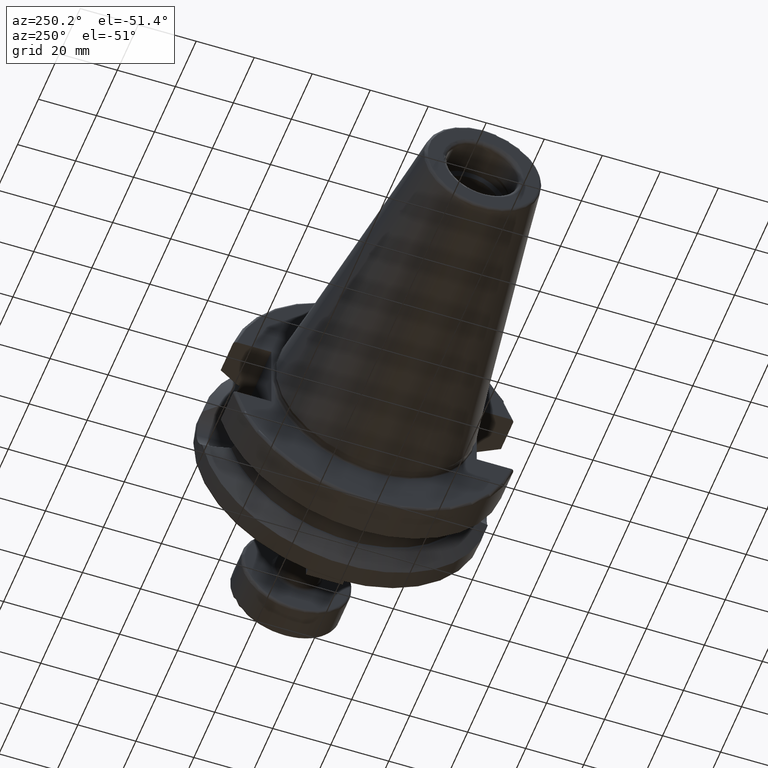
[diagram: clean part render]
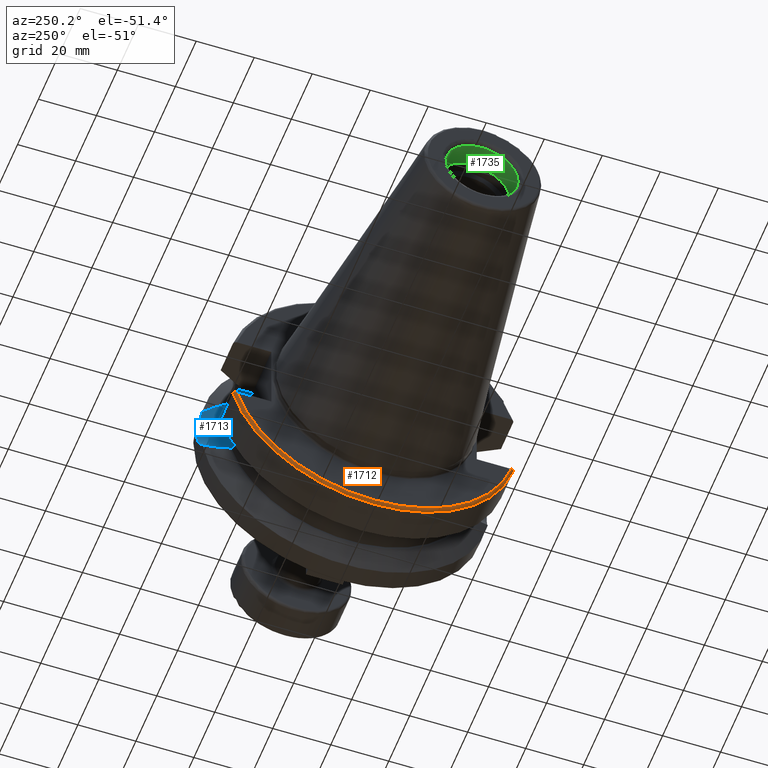
[diagram: same view with three faces highlighted in distinct colors, each labeled with its STEP entity id]
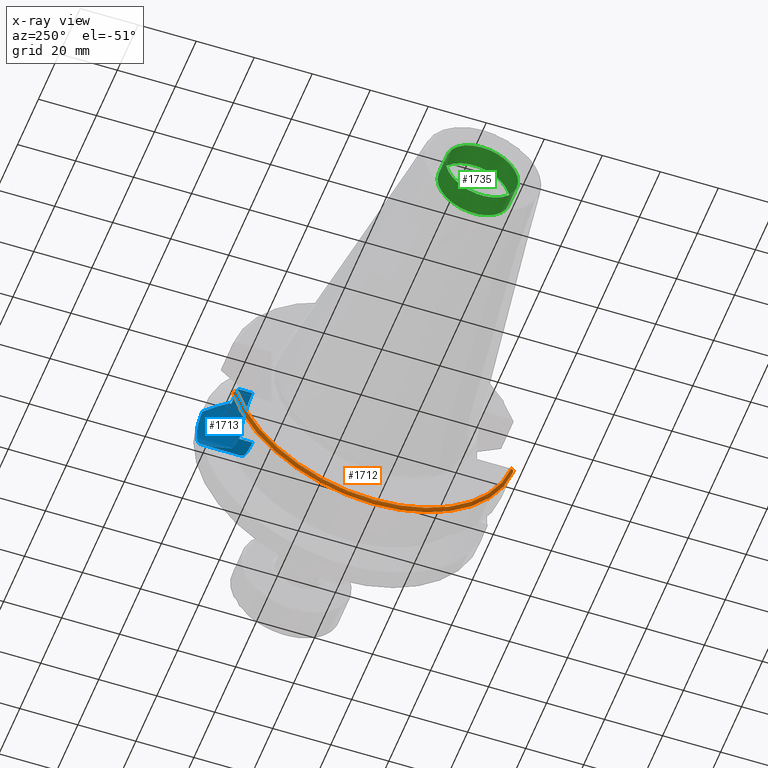
[diagram: x-ray of the same camera — body ghosted, the three highlighted faces saturated]
A machine part, auxiliary view with three faces highlighted in distinct colors.
The next image is the same camera in x-ray (body ghosted, the three faces saturated) — at least one of them is partly hidden behind the body in this view.
Their STEP definitions:

[orange] entity #1712 — the highlighted toroidal blend (fillet) surface has major radius 49 mm and minor (blend) radius 1 mm.
#53=TOROIDAL_SURFACE('',#1954,49.,1.00000000000001);
#82=B_SPLINE_CURVE_WITH_KNOTS('',3,(#2854,#2855,#2856,#2857,#2858,#2859,
#2860,#2861,#2862,#2863),.UNSPECIFIED.,.F.,.F.,(4,2,2,2,4),(0.,0.0366153602488887,
0.0738785471279768,0.111954770343825,0.150744738148559),.UNSPECIFIED.);
#86=B_SPLINE_CURVE_WITH_KNOTS('',3,(#2934,#2935,#2936,#2937,#2938,#2939,
#2940,#2941,#2942,#2943),.UNSPECIFIED.,.F.,.F.,(4,2,2,2,4),(-0.150744738148559,
-0.111954770343824,-0.0738785471279767,-0.0366153602488887,0.),
 .UNSPECIFIED.);
#180=CIRCLE('',#1953,50.);
#181=CIRCLE('',#1955,49.);
#282=FACE_OUTER_BOUND('',#392,.T.);
#392=EDGE_LOOP('',(#1291,#1292,#1293,#1294));
#768=VERTEX_POINT('',#2851);
#769=VERTEX_POINT('',#2853);
#782=VERTEX_POINT('',#2928);
#783=VERTEX_POINT('',#2932);
#950=EDGE_CURVE('',#769,#768,#82,.T.);
#972=EDGE_CURVE('',#769,#782,#180,.T.);
#974=EDGE_CURVE('',#768,#783,#181,.T.);
#975=EDGE_CURVE('',#783,#782,#86,.T.);
#1291=ORIENTED_EDGE('',*,*,#950,.T.);
#1292=ORIENTED_EDGE('',*,*,#974,.T.);
#1293=ORIENTED_EDGE('',*,*,#975,.T.);
#1294=ORIENTED_EDGE('',*,*,#972,.F.);
#1712=ADVANCED_FACE('',(#282),#53,.T.);
#1953=AXIS2_PLACEMENT_3D('',#2929,#2284,#2285);
#1954=AXIS2_PLACEMENT_3D('',#2931,#2287,#2288);
#1955=AXIS2_PLACEMENT_3D('',#2933,#2289,#2290);
#2284=DIRECTION('center_axis',(1.,0.,0.));
#2285=DIRECTION('ref_axis',(0.,0.,-1.));
#2287=DIRECTION('center_axis',(1.,0.,0.));
#2288=DIRECTION('ref_axis',(0.,0.,-1.));
#2289=DIRECTION('center_axis',(1.,0.,0.));
#2290=DIRECTION('ref_axis',(0.,0.,-1.));
#2851=CARTESIAN_POINT('',(3.,-47.2850663529195,-12.85));
#2853=CARTESIAN_POINT('',(4.,-48.320570153921,-12.85));
#2854=CARTESIAN_POINT('Ctrl Pts',(4.,-48.320570153921,-12.85));
#2855=CARTESIAN_POINT('Ctrl Pts',(3.87794879917037,-48.320570153921,-12.85));
#2856=CARTESIAN_POINT('Ctrl Pts',(3.73444179762801,-48.2913008148985,-12.85));
#2857=CARTESIAN_POINT('Ctrl Pts',(3.50759661267378,-48.195456420672,-12.85));
#2858=CARTESIAN_POINT('Ctrl Pts',(3.38466178625349,-48.1111726737502,-12.85));
#2859=CARTESIAN_POINT('Ctrl Pts',(3.20894825591124,-47.9317521656206,-12.85));
#2860=CARTESIAN_POINT('Ctrl Pts',(3.12586105659968,-47.8041069632012,-12.85));
#2861=CARTESIAN_POINT('Ctrl Pts',(3.0295042947282,-47.5666951077039,-12.85));
#2862=CARTESIAN_POINT('Ctrl Pts',(3.,-47.414366245602,-12.85));
#2863=CARTESIAN_POINT('Ctrl Pts',(3.,-47.2850663529195,-12.85));
#2928=CARTESIAN_POINT('',(4.,48.320570153921,-12.85));
#2929=CARTESIAN_POINT('Origin',(4.,0.,0.));
#2931=CARTESIAN_POINT('Origin',(4.,0.,0.));
#2932=CARTESIAN_POINT('',(3.,47.2850663529195,-12.85));
#2933=CARTESIAN_POINT('Origin',(2.99999999999999,0.,0.));
#2934=CARTESIAN_POINT('Ctrl Pts',(3.,47.2850663529195,-12.85));
#2935=CARTESIAN_POINT('Ctrl Pts',(3.,47.414366245602,-12.85));
#2936=CARTESIAN_POINT('Ctrl Pts',(3.0295042947282,47.5666951077039,-12.85));
#2937=CARTESIAN_POINT('Ctrl Pts',(3.12586105659968,47.8041069632012,-12.85));
#2938=CARTESIAN_POINT('Ctrl Pts',(3.20894825591124,47.9317521656206,-12.85));
#2939=CARTESIAN_POINT('Ctrl Pts',(3.38466178625349,48.1111726737502,-12.85));
#2940=CARTESIAN_POINT('Ctrl Pts',(3.50759661267378,48.195456420672,-12.85));
#2941=CARTESIAN_POINT('Ctrl Pts',(3.73444179762801,48.2913008148985,-12.85));
#2942=CARTESIAN_POINT('Ctrl Pts',(3.87794879917037,48.320570153921,-12.85));
#2943=CARTESIAN_POINT('Ctrl Pts',(4.,48.320570153921,-12.85));

[blue] entity #1713 — the highlighted cylindrical surface (partial cylindrical patch) has radius 12.85 mm, axis along (0, 1, 0).
#83=B_SPLINE_CURVE_WITH_KNOTS('',3,(#2881,#2882,#2883,#2884,#2885,#2886,
#2887,#2888,#2889,#2890),.UNSPECIFIED.,.F.,.F.,(4,2,2,2,4),(4.93620473060709,
5.35046932757102,5.83683405515698,6.32319878274293,6.73746337970686),
 .UNSPECIFIED.);
#84=B_SPLINE_CURVE_WITH_KNOTS('',3,(#2896,#2897,#2898,#2899,#2900,#2901),
 .UNSPECIFIED.,.F.,.F.,(4,2,4),(1.70597184072793,2.24802424732131,2.60708937353861),
 .UNSPECIFIED.);
#85=B_SPLINE_CURVE_WITH_KNOTS('',3,(#2911,#2912,#2913,#2914,#2915,#2916),
 .UNSPECIFIED.,.F.,.F.,(4,2,4),(3.89908224496632,4.38654404035674,4.45084983106028),
 .UNSPECIFIED.);
#87=B_SPLINE_CURVE_WITH_KNOTS('',3,(#2952,#2953,#2954,#2955,#2956,#2957),
 .UNSPECIFIED.,.F.,.F.,(4,2,4),(-0.551767586093955,-0.487461795390416,0.),
 .UNSPECIFIED.);
#88=B_SPLINE_CURVE_WITH_KNOTS('',3,(#2960,#2961,#2962,#2963,#2964,#2965),
 .UNSPECIFIED.,.F.,.F.,(4,2,4),(4.84387686434585,5.20294199056316,5.74499439715654),
 .UNSPECIFIED.);
#103=CYLINDRICAL_SURFACE('',#1956,12.85);
#182=CIRCLE('',#1957,12.85);
#283=FACE_OUTER_BOUND('',#393,.T.);
#393=EDGE_LOOP('',(#1295,#1296,#1297,#1298,#1299,#1300,#1301,#1302,#1303,
#1304));
#518=LINE('',#2905,#638);
#522=LINE('',#2946,#642);
#523=LINE('',#2950,#643);
#524=LINE('',#2959,#644);
#638=VECTOR('',#2267,10.);
#642=VECTOR('',#2293,10.);
#643=VECTOR('',#2296,10.);
#644=VECTOR('',#2297,10.);
#774=VERTEX_POINT('',#2878);
#775=VERTEX_POINT('',#2880);
#776=VERTEX_POINT('',#2894);
#777=VERTEX_POINT('',#2903);
#779=VERTEX_POINT('',#2909);
#784=VERTEX_POINT('',#2945);
#785=VERTEX_POINT('',#2947);
#786=VERTEX_POINT('',#2949);
#787=VERTEX_POINT('',#2951);
#788=VERTEX_POINT('',#2958);
#958=EDGE_CURVE('',#774,#775,#83,.T.);
#962=EDGE_CURVE('',#776,#774,#84,.T.);
#964=EDGE_CURVE('',#777,#776,#518,.T.);
#967=EDGE_CURVE('',#779,#777,#85,.T.);
#976=EDGE_CURVE('',#784,#779,#522,.T.);
#977=EDGE_CURVE('',#785,#784,#182,.T.);
#978=EDGE_CURVE('',#785,#786,#523,.T.);
#979=EDGE_CURVE('',#787,#786,#87,.T.);
#980=EDGE_CURVE('',#788,#787,#524,.T.);
#981=EDGE_CURVE('',#775,#788,#88,.T.);
#1295=ORIENTED_EDGE('',*,*,#967,.F.);
#1296=ORIENTED_EDGE('',*,*,#976,.F.);
#1297=ORIENTED_EDGE('',*,*,#977,.F.);
#1298=ORIENTED_EDGE('',*,*,#978,.T.);
#1299=ORIENTED_EDGE('',*,*,#979,.F.);
#1300=ORIENTED_EDGE('',*,*,#980,.F.);
#1301=ORIENTED_EDGE('',*,*,#981,.F.);
#1302=ORIENTED_EDGE('',*,*,#958,.F.);
#1303=ORIENTED_EDGE('',*,*,#962,.F.);
#1304=ORIENTED_EDGE('',*,*,#964,.F.);
#1713=ADVANCED_FACE('',(#283),#103,.F.);
#1956=AXIS2_PLACEMENT_3D('',#2944,#2291,#2292);
#1957=AXIS2_PLACEMENT_3D('',#2948,#2294,#2295);
#2267=DIRECTION('',(0.,1.,0.));
#2291=DIRECTION('center_axis',(0.,1.,0.));
#2292=DIRECTION('ref_axis',(0.,0.,1.));
#2293=DIRECTION('',(0.,1.,0.));
#2294=DIRECTION('center_axis',(0.,1.,0.));
#2295=DIRECTION('ref_axis',(0.,0.,1.));
#2296=DIRECTION('',(0.,1.,0.));
#2297=DIRECTION('',(0.,-1.,0.));
#2878=CARTESIAN_POINT('',(30.732084412946,49.2614843635149,-8.56190155883473));
#2880=CARTESIAN_POINT('',(30.732084412946,49.2614843635149,8.56190155883473));
#2881=CARTESIAN_POINT('Ctrl Pts',(30.732084412946,49.2614843635149,-8.56190155883473));
#2882=CARTESIAN_POINT('Ctrl Pts',(31.6613105934157,49.4422325446756,-7.52195457523598));
#2883=CARTESIAN_POINT('Ctrl Pts',(32.4582062331155,49.6231582095288,-6.27499601477286));
#2884=CARTESIAN_POINT('Ctrl Pts',(33.6745155840303,49.9132657111737,-3.34559903481264));
#2885=CARTESIAN_POINT('Ctrl Pts',(34.,50.,-1.62121575861985));
#2886=CARTESIAN_POINT('Ctrl Pts',(34.,50.,1.62121575861984));
#2887=CARTESIAN_POINT('Ctrl Pts',(33.6745155840303,49.9132657111737,3.34559903481263));
#2888=CARTESIAN_POINT('Ctrl Pts',(32.4582062331155,49.6231582095288,6.27499601477285));
#2889=CARTESIAN_POINT('Ctrl Pts',(31.6613105934157,49.4422325446756,7.52195457523597));
#2890=CARTESIAN_POINT('Ctrl Pts',(30.732084412946,49.2614843635149,8.56190155883473));
#2894=CARTESIAN_POINT('',(26.7,41.388865421545,-11.5896505555603));
#2896=CARTESIAN_POINT('Ctrl Pts',(26.7,41.388865421545,-11.5896505555603));
#2897=CARTESIAN_POINT('Ctrl Pts',(27.5575735603595,43.0541580056802,-11.1789795661998));
#2898=CARTESIAN_POINT('Ctrl Pts',(28.3833872619345,44.664615633924,-10.6667071522788));
#2899=CARTESIAN_POINT('Ctrl Pts',(29.6692681874855,47.1784655131599,-9.64228850610742));
#2900=CARTESIAN_POINT('Ctrl Pts',(30.2082188762695,48.2339624041648,-9.14818764948575));
#2901=CARTESIAN_POINT('Ctrl Pts',(30.732084412946,49.2614843635149,-8.56190155883473));
#2903=CARTESIAN_POINT('',(26.7,40.6813224957105,-11.5896505555603));
#2905=CARTESIAN_POINT('',(26.7,35.4,-11.5896505555603));
#2909=CARTESIAN_POINT('',(21.15,40.3009615269909,-12.85));
#2911=CARTESIAN_POINT('Ctrl Pts',(21.15,40.3009615269909,-12.85));
#2912=CARTESIAN_POINT('Ctrl Pts',(22.7748726513014,40.3009615269909,-12.85));
#2913=CARTESIAN_POINT('Ctrl Pts',(24.5004394739693,40.4095209038274,-12.523156759676));
#2914=CARTESIAN_POINT('Ctrl Pts',(26.2903327171265,40.6269325004893,-11.7792407740914));
#2915=CARTESIAN_POINT('Ctrl Pts',(26.4965759220475,40.6535701129615,-11.6870653677865));
#2916=CARTESIAN_POINT('Ctrl Pts',(26.7,40.6813224957105,-11.5896505555603));
#2944=CARTESIAN_POINT('Origin',(21.15,35.4,0.));
#2945=CARTESIAN_POINT('',(21.15,35.4,-12.85));
#2946=CARTESIAN_POINT('',(21.15,35.4,-12.85));
#2947=CARTESIAN_POINT('',(21.15,35.4,12.85));
#2948=CARTESIAN_POINT('Origin',(21.15,35.4,0.));
#2949=CARTESIAN_POINT('',(21.15,40.3009615269909,12.85));
#2950=CARTESIAN_POINT('',(21.15,35.4,12.85));
#2951=CARTESIAN_POINT('',(26.7,40.6813224957105,11.5896505555603));
#2952=CARTESIAN_POINT('Ctrl Pts',(26.7,40.6813224957105,11.5896505555603));
#2953=CARTESIAN_POINT('Ctrl Pts',(26.4965759220475,40.6535701129615,11.6870653677865));
#2954=CARTESIAN_POINT('Ctrl Pts',(26.2903327171265,40.6269325004893,11.7792407740914));
#2955=CARTESIAN_POINT('Ctrl Pts',(24.5004394739693,40.4095209038274,12.523156759676));
#2956=CARTESIAN_POINT('Ctrl Pts',(22.7748726513014,40.3009615269909,12.85));
#2957=CARTESIAN_POINT('Ctrl Pts',(21.15,40.3009615269909,12.85));
#2958=CARTESIAN_POINT('',(26.7,41.388865421545,11.5896505555603));
#2959=CARTESIAN_POINT('',(26.7,35.4,11.5896505555603));
#2960=CARTESIAN_POINT('Ctrl Pts',(30.732084412946,49.2614843635149,8.56190155883472));
#2961=CARTESIAN_POINT('Ctrl Pts',(30.2082188762695,48.2339624041648,9.14818764948575));
#2962=CARTESIAN_POINT('Ctrl Pts',(29.6692681874855,47.1784655131599,9.64228850610742));
#2963=CARTESIAN_POINT('Ctrl Pts',(28.3833872619345,44.664615633924,10.6667071522788));
#2964=CARTESIAN_POINT('Ctrl Pts',(27.5575735603595,43.0541580056802,11.1789795661998));
#2965=CARTESIAN_POINT('Ctrl Pts',(26.7,41.388865421545,11.5896505555603));

[green] entity #1735 — the highlighted cylindrical surface (bore or boss wall) has radius 12.5 mm, axis along (1, 0, 0).
#108=CYLINDRICAL_SURFACE('',#2001,12.5);
#204=CIRCLE('',#2000,12.5);
#205=CIRCLE('',#2002,12.5);
#206=CIRCLE('',#2003,12.5);
#305=FACE_OUTER_BOUND('',#418,.T.);
#418=EDGE_LOOP('',(#1405,#1406,#1407,#1408,#1409));
#538=LINE('',#3056,#658);
#658=VECTOR('',#2399,12.5);
#807=VERTEX_POINT('',#3051);
#808=VERTEX_POINT('',#3055);
#809=VERTEX_POINT('',#3057);
#1018=EDGE_CURVE('',#807,#807,#204,.T.);
#1019=EDGE_CURVE('',#807,#808,#538,.T.);
#1020=EDGE_CURVE('',#809,#808,#205,.T.);
#1021=EDGE_CURVE('',#808,#809,#206,.T.);
#1405=ORIENTED_EDGE('',*,*,#1018,.T.);
#1406=ORIENTED_EDGE('',*,*,#1019,.T.);
#1407=ORIENTED_EDGE('',*,*,#1020,.F.);
#1408=ORIENTED_EDGE('',*,*,#1021,.F.);
#1409=ORIENTED_EDGE('',*,*,#1019,.F.);
#1735=ADVANCED_FACE('',(#305),#108,.F.);
#2000=AXIS2_PLACEMENT_3D('',#3053,#2395,#2396);
#2001=AXIS2_PLACEMENT_3D('',#3054,#2397,#2398);
#2002=AXIS2_PLACEMENT_3D('',#3058,#2400,#2401);
#2003=AXIS2_PLACEMENT_3D('',#3059,#2402,#2403);
#2395=DIRECTION('center_axis',(1.,0.,0.));
#2396=DIRECTION('ref_axis',(0.,0.,-1.));
#2397=DIRECTION('center_axis',(1.,0.,0.));
#2398=DIRECTION('ref_axis',(0.,1.,0.));
#2399=DIRECTION('',(-1.,0.,0.));
#2400=DIRECTION('center_axis',(1.,0.,0.));
#2401=DIRECTION('ref_axis',(0.,0.,-1.));
#2402=DIRECTION('center_axis',(1.,0.,0.));
#2403=DIRECTION('ref_axis',(0.,0.,-1.));
#3051=CARTESIAN_POINT('',(-92.4196152422707,-12.5,-1.53080849893419E-15));
#3053=CARTESIAN_POINT('Origin',(-92.4196152422707,0.,0.));
#3054=CARTESIAN_POINT('Origin',(-96.3598076211353,0.,0.));
#3055=CARTESIAN_POINT('',(-100.3,-12.5,-1.53080849893419E-15));
#3056=CARTESIAN_POINT('',(-96.3598076211353,-12.5,-1.53080849893419E-15));
#3057=CARTESIAN_POINT('',(-100.3,-1.53080849893419E-15,12.5));
#3058=CARTESIAN_POINT('Origin',(-100.3,0.,0.));
#3059=CARTESIAN_POINT('Origin',(-100.3,0.,0.));